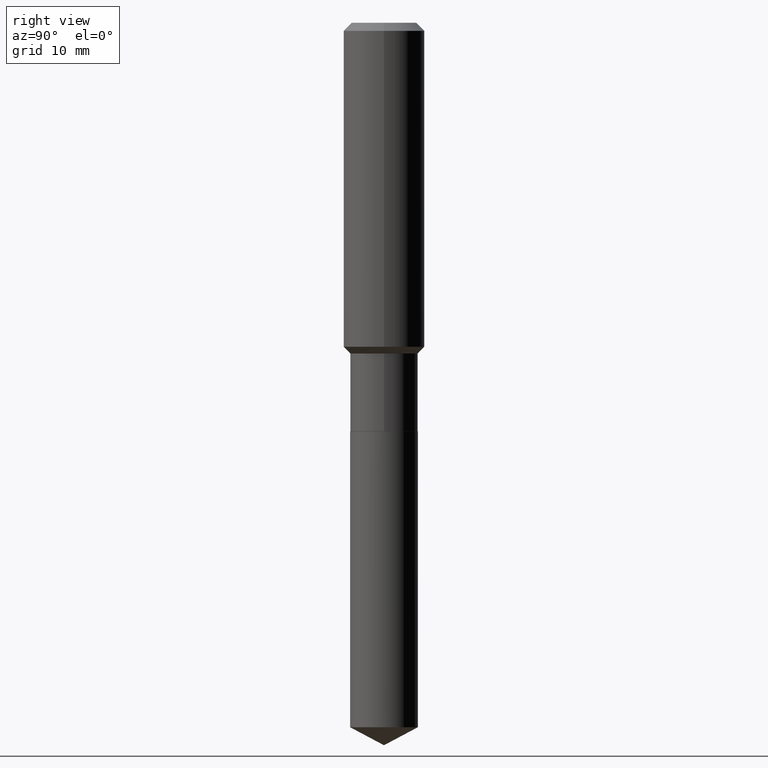
[diagram: clean part render]
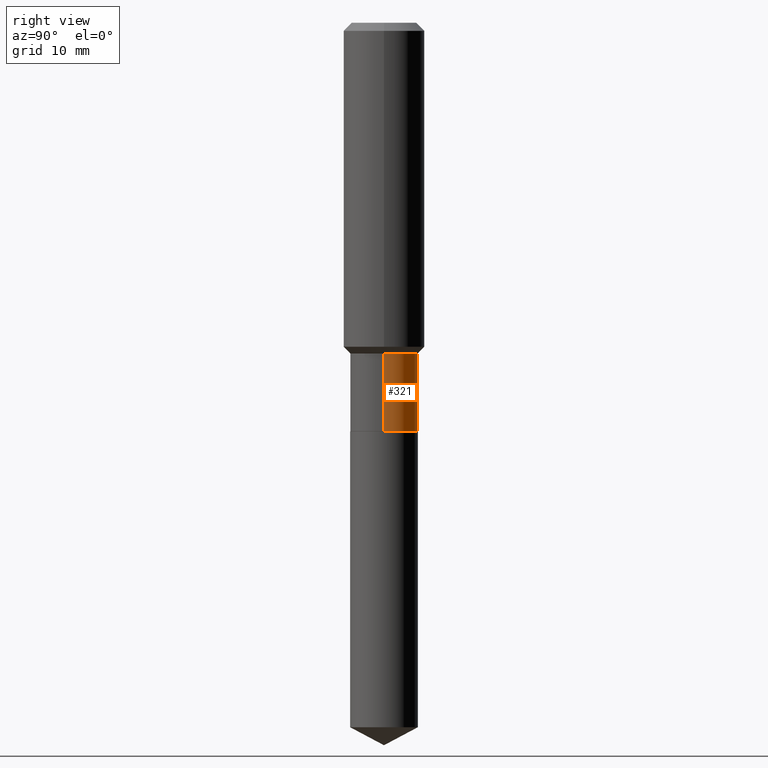
[diagram: same view with one face highlighted and labeled with its STEP entity id]
A machine part, right view. The second image highlights one B-rep face of the part: STEP entity #321.
In plain terms, the highlighted cylindrical surface (edge-blend (fillet) strip) has radius 4.1669 mm, axis along (-0, 0, 1).
Its self-contained STEP definition (entity closure, byte-faithful):
#11 = CARTESIAN_POINT ( 'NONE',  ( -0.1640500000000000014, 1.165645358014444365E-15, -8.069513015563172164E-30 ) ) ;
#37 = CARTESIAN_POINT ( 'NONE',  ( 4.844718251933373369E-29, -6.916973680382155175E-15, -1.981099999999999861 ) ) ;
#41 = VERTEX_POINT ( 'NONE', #266 ) ;
#70 = AXIS2_PLACEMENT_3D ( 'NONE', #373, #174, #368 ) ;
#72 = EDGE_CURVE ( 'NONE', #41, #173, #372, .T. ) ;
#81 = EDGE_CURVE ( 'NONE', #382, #192, #472, .T. ) ;
#86 = ORIENTED_EDGE ( 'NONE', *, *, #474, .F. ) ;
#92 = LINE ( 'NONE', #233, #275 ) ;
#95 = CARTESIAN_POINT ( 'NONE',  ( -0.1640500000000000291, -5.093533238129662036E-15, -1.981099999999999861 ) ) ;
#117 = CARTESIAN_POINT ( 'NONE',  ( -0.1640499999999999459, -5.093533238129662036E-15, -1.604299999999999837 ) ) ;
#151 = CARTESIAN_POINT ( 'NONE',  ( 0.000000000000000000, 0.000000000000000000, 0.000000000000000000 ) ) ;
#173 = VERTEX_POINT ( 'NONE', #117 ) ;
#174 = DIRECTION ( 'NONE',  ( -2.445468806185136597E-29, 3.491481338843145583E-15, 1.000000000000000000 ) ) ;
#187 = FACE_OUTER_BOUND ( 'NONE', #230, .T. ) ;
#192 = VERTEX_POINT ( 'NONE', #95 ) ;
#230 = EDGE_LOOP ( 'NONE', ( #467, #374, #333, #86 ) ) ;
#233 = CARTESIAN_POINT ( 'NONE',  ( 0.1640500000000000014, -1.145555027274432057E-15, 7.999368000693231542E-30 ) ) ;
#237 = AXIS2_PLACEMENT_3D ( 'NONE', #151, #419, #303 ) ;
#242 = DIRECTION ( 'NONE',  ( -2.445468806185136877E-29, 3.491481338843145188E-15, 1.000000000000000000 ) ) ;
#250 = AXIS2_PLACEMENT_3D ( 'NONE', #37, #251, #328 ) ;
#251 = DIRECTION ( 'NONE',  ( -2.445468806185136597E-29, 3.491481338843145583E-15, 1.000000000000000000 ) ) ;
#252 = EDGE_CURVE ( 'NONE', #192, #173, #265, .T. ) ;
#259 = VECTOR ( 'NONE', #418, 39.37007874015748143 ) ;
#265 = LINE ( 'NONE', #11, #259 ) ;
#266 = CARTESIAN_POINT ( 'NONE',  ( 0.1640499999999999459, -6.746938539180489683E-15, -1.604299999999999837 ) ) ;
#275 = VECTOR ( 'NONE', #242, 39.37007874015748143 ) ;
#303 = DIRECTION ( 'NONE',  ( 1.000000000000000000, -6.982962677686266711E-15, 4.876176775795935232E-29 ) ) ;
#321 = ADVANCED_FACE ( 'NONE', ( #187 ), #458, .T. ) ;
#328 = DIRECTION ( 'NONE',  ( 1.000000000000000000, -6.982962677686269077E-15, 0.000000000000000000 ) ) ;
#333 = ORIENTED_EDGE ( 'NONE', *, *, #72, .F. ) ;
#335 = CARTESIAN_POINT ( 'NONE',  ( 0.1640500000000000291, -8.062528707656587626E-15, -1.981099999999999861 ) ) ;
#368 = DIRECTION ( 'NONE',  ( 1.000000000000000000, -6.982962677686266711E-15, 0.000000000000000000 ) ) ;
#372 = CIRCLE ( 'NONE', #70, 0.1640499999999999459 ) ;
#373 = CARTESIAN_POINT ( 'NONE',  ( 3.923265605762814630E-29, -5.601383511906058021E-15, -1.604299999999999837 ) ) ;
#374 = ORIENTED_EDGE ( 'NONE', *, *, #252, .T. ) ;
#382 = VERTEX_POINT ( 'NONE', #335 ) ;
#418 = DIRECTION ( 'NONE',  ( -2.445468806185136877E-29, 3.491481338843145188E-15, 1.000000000000000000 ) ) ;
#419 = DIRECTION ( 'NONE',  ( -2.445468806185136597E-29, 3.491481338843145583E-15, 1.000000000000000000 ) ) ;
#458 = CYLINDRICAL_SURFACE ( 'NONE', #237, 0.1640500000000000014 ) ;
#467 = ORIENTED_EDGE ( 'NONE', *, *, #81, .T. ) ;
#472 = CIRCLE ( 'NONE', #250, 0.1640500000000000291 ) ;
#474 = EDGE_CURVE ( 'NONE', #382, #41, #92, .T. ) ;